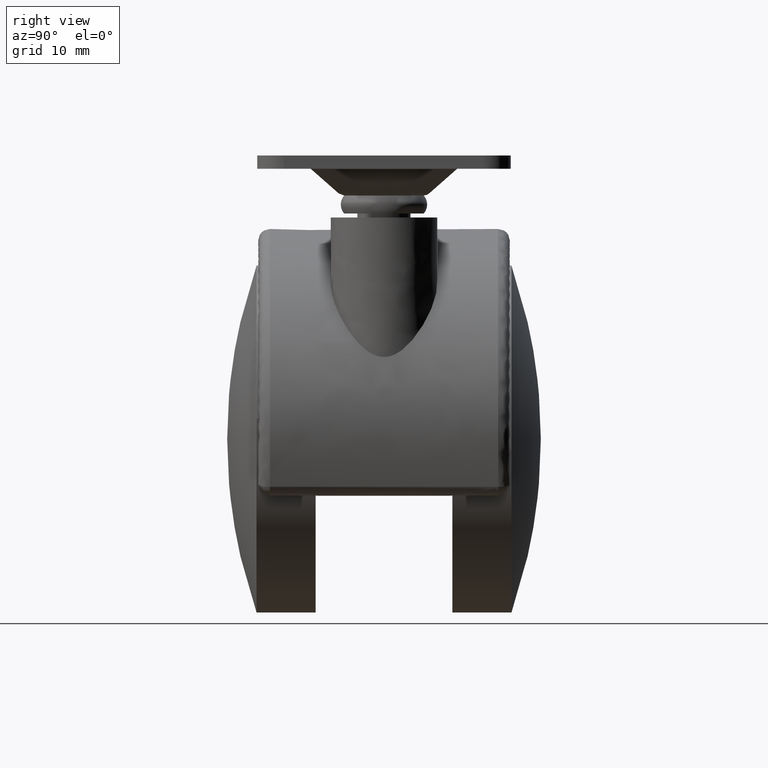
[diagram: clean part render]
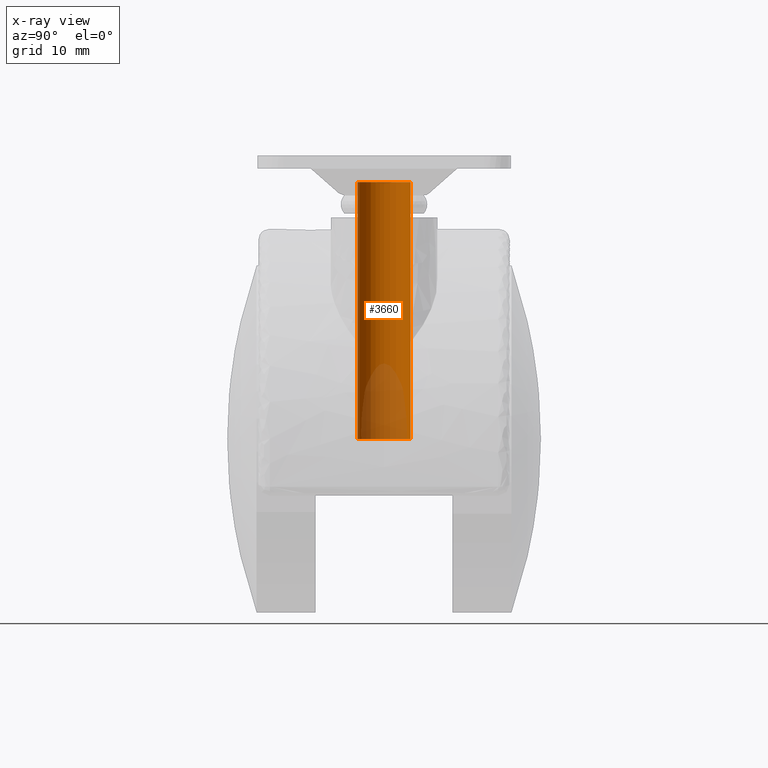
[diagram: x-ray — body ghosted, one internal face saturated and labeled with its STEP entity id]
A machine part, right view, then the same camera in x-ray: the body is ghosted and one INTERNAL B-rep face — a face not visible from any outside direction — is saturated and labeled: STEP entity #3660.
In plain terms, the highlighted face is a freeform B-spline surface patch.
Its self-contained STEP definition (entity closure, byte-faithful):
#3497=CARTESIAN_POINT('',(21.527863061356239,3.972038105452678,2.839428E-016));
#3498=VERTEX_POINT('',#3497);
#3516=CARTESIAN_POINT('',(21.527863061356250,3.972038105452678,38.500000000000000));
#3517=VERTEX_POINT('',#3516);
#3518=CARTESIAN_POINT('',(21.527863061356250,3.972038105452678,38.500000000000000));
#3519=CARTESIAN_POINT('',(21.527863061356239,3.972038105452678,2.839428E-016));
#3520=QUASI_UNIFORM_CURVE('',1,(#3518,#3519),.UNSPECIFIED.,.F.,.U.);
#3521=EDGE_CURVE('',#3517,#3498,#3520,.T.);
#3540=CARTESIAN_POINT('',(22.244194158337429,-3.992539193675357,38.500000000000000));
#3541=VERTEX_POINT('',#3540);
#3555=CARTESIAN_POINT('',(22.244194158337429,-3.992539193675357,2.220446E-016));
#3556=VERTEX_POINT('',#3555);
#3557=CARTESIAN_POINT('',(22.244194158337429,-3.992539193675357,38.500000000000000));
#3558=CARTESIAN_POINT('',(22.244194158337429,-3.992539193675357,2.220446E-016));
#3559=QUASI_UNIFORM_CURVE('',1,(#3557,#3558),.UNSPECIFIED.,.F.,.U.);
#3560=EDGE_CURVE('',#3541,#3556,#3559,.T.);
#3578=CARTESIAN_POINT('',(22.244194158139429,-3.992539193687467,39.462500000000013));
#3579=CARTESIAN_POINT('',(18.251654964451966,-4.236733351826894,39.462500000000013));
#3580=CARTESIAN_POINT('',(18.007460806312530,-0.244194158139428,39.462500000000013));
#3581=CARTESIAN_POINT('',(17.776855213069894,3.526173963358004,39.462500000000006));
#3582=CARTESIAN_POINT('',(21.527863061372965,3.972038105454666,39.462500000000006));
#3583=CARTESIAN_POINT('',(22.244194158139429,-3.992539193687467,-0.986562500000005));
#3584=CARTESIAN_POINT('',(18.251654964451966,-4.236733351826894,-0.986562500000005));
#3585=CARTESIAN_POINT('',(18.007460806312530,-0.244194158139428,-0.986562500000005));
#3586=CARTESIAN_POINT('',(17.776855213069894,3.526173963358004,-0.986562500000005));
#3587=CARTESIAN_POINT('',(21.527863061372965,3.972038105454666,-0.986562500000005));
#3595=(BOUNDED_SURFACE()B_SPLINE_SURFACE(2,1,((#3578,#3583),(#3579,#3584),(#3580,#3585),(#3581,#3586),(#3582,#3587)),.UNSPECIFIED.,.F.,.F.,.U.)B_SPLINE_SURFACE_WITH_KNOTS((3,2,3),(2,2),(0.0,6.627416997969523,12.989737316020269),(0.0,40.449062500000032),.UNSPECIFIED.)GEOMETRIC_REPRESENTATION_ITEM()RATIONAL_B_SPLINE_SURFACE(((1.0,1.0),(0.707106781186548,0.707106781186548),(1.0,1.0),(0.718822509939086,0.718822509939086),(0.977505800795127,0.977505800795127)))REPRESENTATION_ITEM('')SURFACE());
#3596=CARTESIAN_POINT('',(18.0,0.0,0.0));
#3597=VERTEX_POINT('',#3596);
#3598=CARTESIAN_POINT('',(18.0,0.0,0.0));
#3599=CARTESIAN_POINT('',(18.000000000000004,3.552698103775350,0.0));
#3600=CARTESIAN_POINT('',(21.527863061356246,3.972038105452678,2.839428E-016));
#3608=(BOUNDED_CURVE()B_SPLINE_CURVE(2,(#3598,#3599,#3600),.UNSPECIFIED.,.F.,.U.)B_SPLINE_CURVE_WITH_KNOTS((3,3),(0.0,0.229562473514221),.UNSPECIFIED.)CURVE()GEOMETRIC_REPRESENTATION_ITEM()RATIONAL_B_SPLINE_CURVE((1.0,0.731050832854567,0.956026754185097))REPRESENTATION_ITEM(''));
#3609=EDGE_CURVE('',#3597,#3498,#3608,.T.);
#3610=ORIENTED_EDGE('',*,*,#3609,.F.);
#3611=CARTESIAN_POINT('',(22.244194158337432,-3.992539193675357,2.220446E-016));
#3612=CARTESIAN_POINT('',(22.122211053392910,-4.000000000000000,0.0));
#3613=CARTESIAN_POINT('',(22.0,-4.0,0.0));
#3614=CARTESIAN_POINT('',(18.000000000000007,-4.000000000000000,0.0));
#3615=CARTESIAN_POINT('',(18.0,0.0,0.0));
#3623=(BOUNDED_CURVE()B_SPLINE_CURVE(2,(#3611,#3612,#3613,#3614,#3615),.UNSPECIFIED.,.F.,.U.)B_SPLINE_CURVE_WITH_KNOTS((3,2,3),(0.739332962224854,0.750000000000000,1.0),.UNSPECIFIED.)CURVE()GEOMETRIC_REPRESENTATION_ITEM()RATIONAL_B_SPLINE_CURVE((0.976072041636523,0.987502787883332,1.0,0.707106781186548,1.0))REPRESENTATION_ITEM(''));
#3624=EDGE_CURVE('',#3556,#3597,#3623,.T.);
#3625=ORIENTED_EDGE('',*,*,#3624,.F.);
#3626=ORIENTED_EDGE('',*,*,#3560,.F.);
#3627=CARTESIAN_POINT('',(18.0,0.0,38.500000000000000));
#3628=VERTEX_POINT('',#3627);
#3629=CARTESIAN_POINT('',(22.244194158337425,-3.992539193675358,38.500000000000007));
#3630=CARTESIAN_POINT('',(22.122211053392906,-4.000000000000001,38.500000000000000));
#3631=CARTESIAN_POINT('',(22.0,-4.0,38.500000000000000));
#3632=CARTESIAN_POINT('',(18.000000000000007,-4.000000000000000,38.500000000000000));
#3633=CARTESIAN_POINT('',(18.0,0.0,38.500000000000000));
#3641=(BOUNDED_CURVE()B_SPLINE_CURVE(2,(#3629,#3630,#3631,#3632,#3633),.UNSPECIFIED.,.F.,.U.)B_SPLINE_CURVE_WITH_KNOTS((3,2,3),(0.739332962224854,0.750000000000000,1.0),.UNSPECIFIED.)CURVE()GEOMETRIC_REPRESENTATION_ITEM()RATIONAL_B_SPLINE_CURVE((0.976072041636524,0.987502787883332,1.0,0.707106781186548,1.0))REPRESENTATION_ITEM(''));
#3642=EDGE_CURVE('',#3541,#3628,#3641,.T.);
#3643=ORIENTED_EDGE('',*,*,#3642,.T.);
#3644=CARTESIAN_POINT('',(18.0,0.0,38.500000000000000));
#3645=CARTESIAN_POINT('',(17.999999999999996,3.552698103775354,38.500000000000014));
#3646=CARTESIAN_POINT('',(21.527863061356250,3.972038105452678,38.500000000000007));
#3654=(BOUNDED_CURVE()B_SPLINE_CURVE(2,(#3644,#3645,#3646),.UNSPECIFIED.,.F.,.U.)B_SPLINE_CURVE_WITH_KNOTS((3,3),(0.0,0.229562473514222),.UNSPECIFIED.)CURVE()GEOMETRIC_REPRESENTATION_ITEM()RATIONAL_B_SPLINE_CURVE((1.0,0.731050832854567,0.956026754185097))REPRESENTATION_ITEM(''));
#3655=EDGE_CURVE('',#3628,#3517,#3654,.T.);
#3656=ORIENTED_EDGE('',*,*,#3655,.T.);
#3657=ORIENTED_EDGE('',*,*,#3521,.T.);
#3658=EDGE_LOOP('',(#3610,#3625,#3626,#3643,#3656,#3657));
#3659=FACE_OUTER_BOUND('',#3658,.T.);
#3660=ADVANCED_FACE('',(#3659),#3595,.T.);